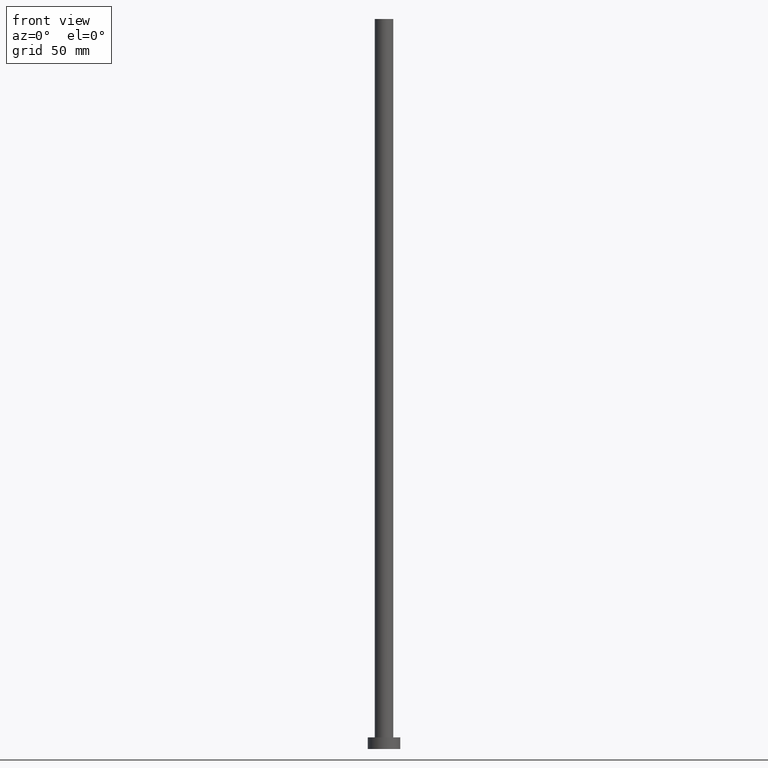
[diagram: clean part render]
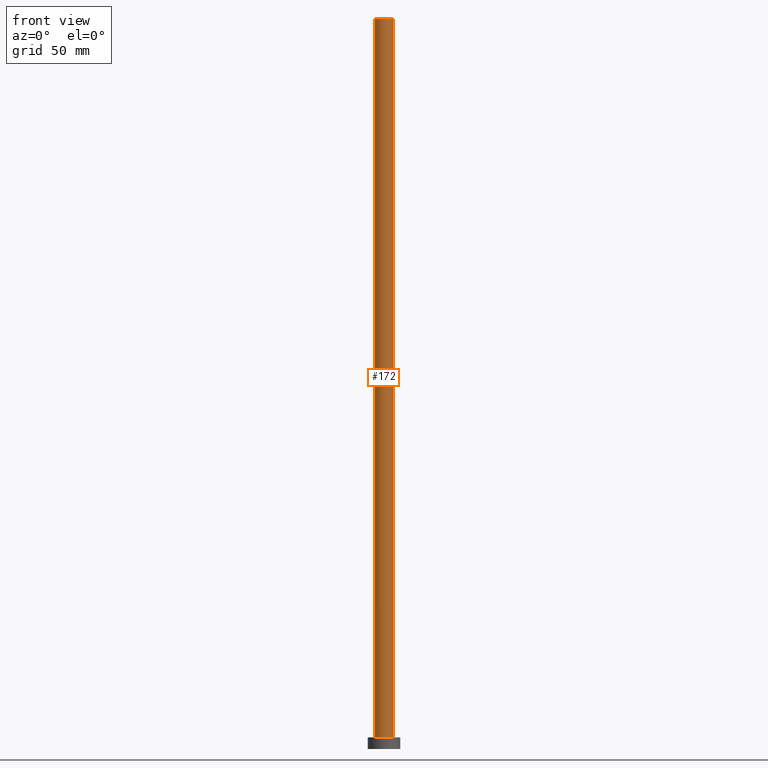
[diagram: same view with one face highlighted and labeled with its STEP entity id]
A machine part, front view. The second image highlights one B-rep face of the part: STEP entity #172.
In plain terms, the highlighted cylindrical surface (edge-blend (fillet) strip) has radius 4 mm, axis along (-0, -0, -1).
Its self-contained STEP definition (entity closure, byte-faithful):
#1 = AXIS2_PLACEMENT_3D ( 'NONE', #209, #30, #132 ) ;
#5 = LINE ( 'NONE', #134, #45 ) ;
#7 = CARTESIAN_POINT ( 'NONE',  ( 0.000000000000000000, 0.000000000000000000, 315.0000000000000000 ) ) ;
#24 = ORIENTED_EDGE ( 'NONE', *, *, #54, .T. ) ;
#27 = AXIS2_PLACEMENT_3D ( 'NONE', #7, #91, #225 ) ;
#30 = DIRECTION ( 'NONE',  ( 0.000000000000000000, 0.000000000000000000, 1.000000000000000000 ) ) ;
#42 = CARTESIAN_POINT ( 'NONE',  ( -4.000000000000000000, 0.000000000000000000, 5.000000000000000000 ) ) ;
#45 = VECTOR ( 'NONE', #70, 1000.000000000000000 ) ;
#54 = EDGE_CURVE ( 'NONE', #215, #180, #244, .T. ) ;
#61 = EDGE_LOOP ( 'NONE', ( #95, #152, #24, #158 ) ) ;
#70 = DIRECTION ( 'NONE',  ( -0.000000000000000000, -0.000000000000000000, -1.000000000000000000 ) ) ;
#71 = CARTESIAN_POINT ( 'NONE',  ( -4.000000000000000000, 0.000000000000000000, 315.0000000000000000 ) ) ;
#74 = CARTESIAN_POINT ( 'NONE',  ( 0.000000000000000000, 0.000000000000000000, 5.000000000000000000 ) ) ;
#89 = DIRECTION ( 'NONE',  ( 0.000000000000000000, 0.000000000000000000, 1.000000000000000000 ) ) ;
#91 = DIRECTION ( 'NONE',  ( -0.000000000000000000, -0.000000000000000000, -1.000000000000000000 ) ) ;
#93 = DIRECTION ( 'NONE',  ( -0.000000000000000000, -0.000000000000000000, -1.000000000000000000 ) ) ;
#95 = ORIENTED_EDGE ( 'NONE', *, *, #148, .F. ) ;
#115 = FACE_OUTER_BOUND ( 'NONE', #61, .T. ) ;
#127 = CARTESIAN_POINT ( 'NONE',  ( -4.000000000000000000, 0.000000000000000000, 315.0000000000000000 ) ) ;
#130 = EDGE_CURVE ( 'NONE', #215, #141, #186, .T. ) ;
#132 = DIRECTION ( 'NONE',  ( 1.000000000000000000, 0.000000000000000000, 0.000000000000000000 ) ) ;
#134 = CARTESIAN_POINT ( 'NONE',  ( 4.000000000000000000, 4.898587196589412829E-16, 315.0000000000000000 ) ) ;
#135 = CARTESIAN_POINT ( 'NONE',  ( 4.000000000000000000, 4.898587196589412829E-16, 5.000000000000000000 ) ) ;
#141 = VERTEX_POINT ( 'NONE', #192 ) ;
#147 = CIRCLE ( 'NONE', #191, 4.000000000000000000 ) ;
#148 = EDGE_CURVE ( 'NONE', #141, #178, #5, .T. ) ;
#152 = ORIENTED_EDGE ( 'NONE', *, *, #130, .F. ) ;
#156 = EDGE_CURVE ( 'NONE', #180, #178, #147, .T. ) ;
#158 = ORIENTED_EDGE ( 'NONE', *, *, #156, .T. ) ;
#171 = DIRECTION ( 'NONE',  ( 1.000000000000000000, 0.000000000000000000, 0.000000000000000000 ) ) ;
#172 = ADVANCED_FACE ( 'NONE', ( #115 ), #193, .T. ) ;
#178 = VERTEX_POINT ( 'NONE', #135 ) ;
#180 = VERTEX_POINT ( 'NONE', #42 ) ;
#186 = CIRCLE ( 'NONE', #1, 4.000000000000000000 ) ;
#191 = AXIS2_PLACEMENT_3D ( 'NONE', #74, #89, #171 ) ;
#192 = CARTESIAN_POINT ( 'NONE',  ( 4.000000000000000000, 4.898587196589412829E-16, 315.0000000000000000 ) ) ;
#193 = CYLINDRICAL_SURFACE ( 'NONE', #27, 4.000000000000000000 ) ;
#203 = VECTOR ( 'NONE', #93, 1000.000000000000000 ) ;
#209 = CARTESIAN_POINT ( 'NONE',  ( 0.000000000000000000, 0.000000000000000000, 315.0000000000000000 ) ) ;
#215 = VERTEX_POINT ( 'NONE', #127 ) ;
#225 = DIRECTION ( 'NONE',  ( -1.000000000000000000, 0.000000000000000000, 0.000000000000000000 ) ) ;
#244 = LINE ( 'NONE', #71, #203 ) ;